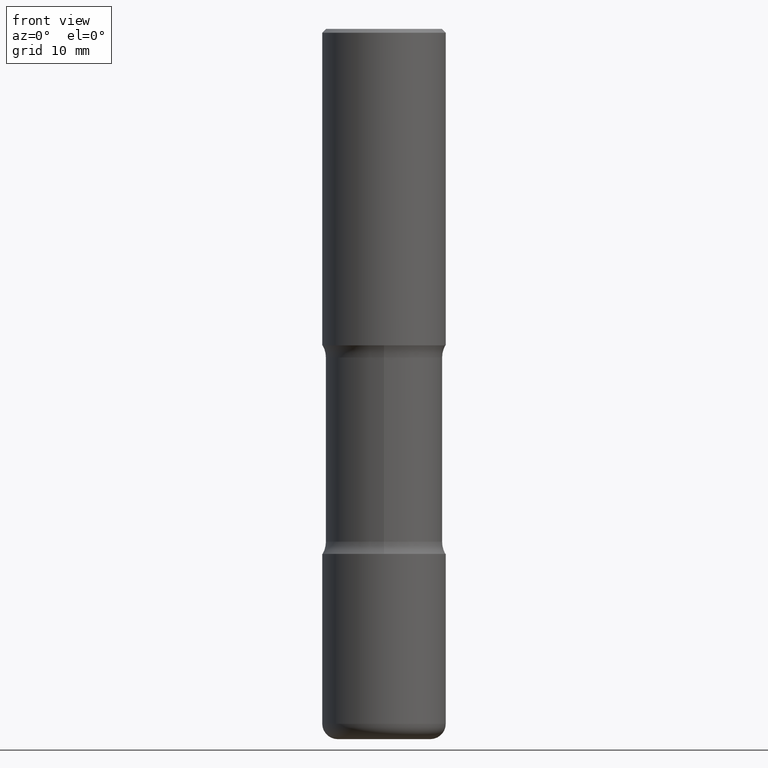
[diagram: clean part render]
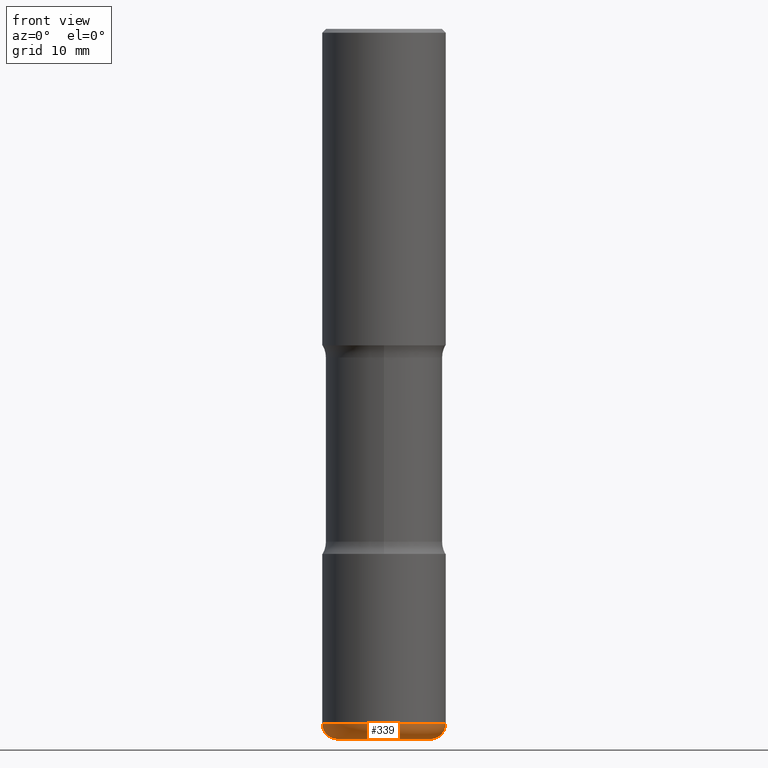
[diagram: same view with one face highlighted and labeled with its STEP entity id]
A machine part, front view. The second image highlights one B-rep face of the part: STEP entity #339.
In plain terms, the highlighted toroidal blend (fillet) surface has major radius 6.0008 mm and minor (blend) radius 1.999 mm.
Its self-contained STEP definition (entity closure, byte-faithful):
#9 = VERTEX_POINT ( 'NONE', #116 ) ;
#29 = ORIENTED_EDGE ( 'NONE', *, *, #172, .F. ) ;
#33 = DIRECTION ( 'NONE',  ( 1.000000000000000000, -6.982962677686263555E-15, 0.000000000000000000 ) ) ;
#50 = ORIENTED_EDGE ( 'NONE', *, *, #367, .F. ) ;
#58 = DIRECTION ( 'NONE',  ( -1.000000000000000000, 7.105427357601008170E-15, 0.000000000000000000 ) ) ;
#98 = CIRCLE ( 'NONE', #375, 0.07869999999999956197 ) ;
#102 = DIRECTION ( 'NONE',  ( 1.000000000000000000, -6.982962677686265133E-15, 0.000000000000000000 ) ) ;
#116 = CARTESIAN_POINT ( 'NONE',  ( 0.3149499999999998967, -1.457064992326020852E-14, -3.543300000000000338 ) ) ;
#133 = ORIENTED_EDGE ( 'NONE', *, *, #151, .T. ) ;
#134 = EDGE_CURVE ( 'NONE', #533, #9, #98, .T. ) ;
#135 = ORIENTED_EDGE ( 'NONE', *, *, #134, .T. ) ;
#137 = AXIS2_PLACEMENT_3D ( 'NONE', #183, #309, #102 ) ;
#143 = CARTESIAN_POINT ( 'NONE',  ( 0.2362500000000001821, -1.402109076052630027E-14, -3.543300000000000338 ) ) ;
#151 = EDGE_CURVE ( 'NONE', #298, #533, #308, .T. ) ;
#157 = DIRECTION ( 'NONE',  ( -2.445468806185136597E-29, 3.491481338843145583E-15, 1.000000000000000000 ) ) ;
#160 = CARTESIAN_POINT ( 'NONE',  ( -0.3149499999999998967, -1.013351148164648424E-14, -3.543300000000000338 ) ) ;
#161 = CARTESIAN_POINT ( 'NONE',  ( -0.2362500000000001821, -1.055049983885156031E-14, -3.621999999999999886 ) ) ;
#172 = EDGE_CURVE ( 'NONE', #298, #301, #529, .T. ) ;
#183 = CARTESIAN_POINT ( 'NONE',  ( 8.857488016002564476E-29, -1.264614540928987199E-14, -3.621999999999999886 ) ) ;
#213 = AXIS2_PLACEMENT_3D ( 'NONE', #416, #157, #33 ) ;
#220 = AXIS2_PLACEMENT_3D ( 'NONE', #406, #409, #362 ) ;
#298 = VERTEX_POINT ( 'NONE', #161 ) ;
#301 = VERTEX_POINT ( 'NONE', #160 ) ;
#308 = CIRCLE ( 'NONE', #137, 0.2362500000000001821 ) ;
#309 = DIRECTION ( 'NONE',  ( -2.445468806185136597E-29, 3.491481338843145583E-15, 1.000000000000000000 ) ) ;
#320 = AXIS2_PLACEMENT_3D ( 'NONE', #351, #443, #58 ) ;
#339 = ADVANCED_FACE ( 'NONE', ( #508 ), #523, .T. ) ;
#351 = CARTESIAN_POINT ( 'NONE',  ( -0.2362500000000001821, -1.069270861468967988E-14, -3.543300000000000338 ) ) ;
#353 = DIRECTION ( 'NONE',  ( -6.982962677686266711E-15, -1.000000000000000000, 3.491481338843145583E-15 ) ) ;
#362 = DIRECTION ( 'NONE',  ( 1.000000000000000000, -6.982962677686269866E-15, 4.883557194083114022E-29 ) ) ;
#367 = EDGE_CURVE ( 'NONE', #301, #9, #399, .T. ) ;
#375 = AXIS2_PLACEMENT_3D ( 'NONE', #143, #353, #392 ) ;
#384 = EDGE_LOOP ( 'NONE', ( #29, #133, #135, #50 ) ) ;
#392 = DIRECTION ( 'NONE',  ( 1.000000000000000000, -6.982962677686259611E-15, 0.000000000000000000 ) ) ;
#399 = CIRCLE ( 'NONE', #213, 0.3149500000000000077 ) ;
#406 = CARTESIAN_POINT ( 'NONE',  ( 8.665029620955795190E-29, -1.237136582792291865E-14, -3.543300000000000338 ) ) ;
#409 = DIRECTION ( 'NONE',  ( -2.445468806185136597E-29, 3.491481338843145583E-15, 1.000000000000000000 ) ) ;
#416 = CARTESIAN_POINT ( 'NONE',  ( 8.665029620955795190E-29, -1.237136582792291865E-14, -3.543300000000000338 ) ) ;
#424 = CARTESIAN_POINT ( 'NONE',  ( 0.2362500000000001821, -1.429587034189325203E-14, -3.621999999999999886 ) ) ;
#443 = DIRECTION ( 'NONE',  ( 7.105427357601001859E-15, 1.000000000000000000, -3.491481338843145583E-15 ) ) ;
#508 = FACE_OUTER_BOUND ( 'NONE', #384, .T. ) ;
#523 = TOROIDAL_SURFACE ( 'NONE', #220, 0.2362500000000001821, 0.07869999999999958973 ) ;
#529 = CIRCLE ( 'NONE', #320, 0.07869999999999956197 ) ;
#533 = VERTEX_POINT ( 'NONE', #424 ) ;